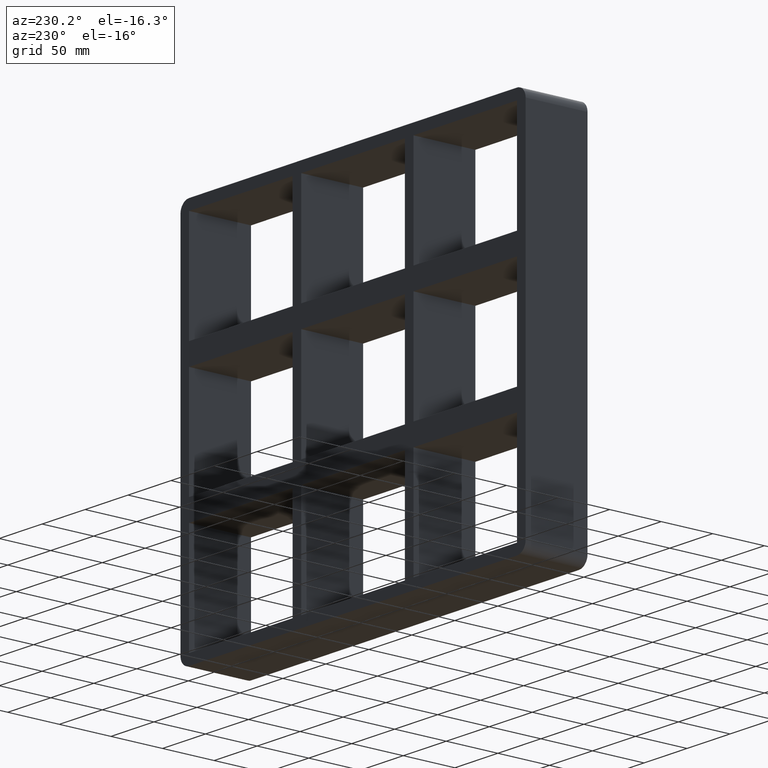
[diagram: clean part render]
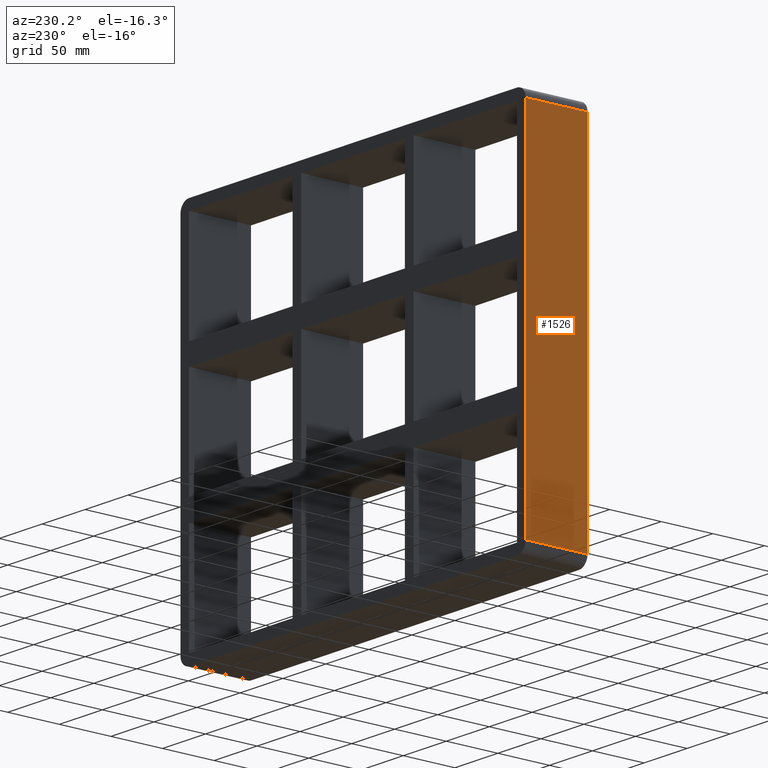
[diagram: same view with one face highlighted and labeled with its STEP entity id]
A machine part, auxiliary view. The second image highlights one B-rep face of the part: STEP entity #1526.
In plain terms, the highlighted planar face has unit normal (-1, 0, 0).
Its self-contained STEP definition (entity closure, byte-faithful):
#580=CARTESIAN_POINT('',(-200.75000000000006,57.0,-171.50000000000003));
#581=VERTEX_POINT('',#580);
#589=CARTESIAN_POINT('',(-200.75000000000006,57.0,171.50000000000003));
#590=VERTEX_POINT('',#589);
#591=CARTESIAN_POINT('',(-200.75000000000006,57.0,-171.50000000000003));
#592=DIRECTION('',(0.0,0.0,1.0));
#593=VECTOR('',#592,343.00000000000006);
#594=LINE('',#591,#593);
#595=EDGE_CURVE('',#581,#590,#594,.T.);
#1027=CARTESIAN_POINT('',(-200.75000000000006,-3.0,171.50000000000003));
#1028=VERTEX_POINT('',#1027);
#1036=CARTESIAN_POINT('',(-200.75000000000006,-3.0,-171.50000000000003));
#1037=VERTEX_POINT('',#1036);
#1038=CARTESIAN_POINT('',(-200.75000000000006,-3.0,171.50000000000003));
#1039=DIRECTION('',(0.0,0.0,-1.0));
#1040=VECTOR('',#1039,343.00000000000006);
#1041=LINE('',#1038,#1040);
#1042=EDGE_CURVE('',#1028,#1037,#1041,.T.);
#1501=CARTESIAN_POINT('',(-200.75000000000006,-3.0,-171.50000000000003));
#1502=DIRECTION('',(0.0,1.0,0.0));
#1503=VECTOR('',#1502,60.0);
#1504=LINE('',#1501,#1503);
#1505=EDGE_CURVE('',#1037,#581,#1504,.T.);
#1510=CARTESIAN_POINT('',(-200.75000000000006,0.0,-181.50000000000003));
#1511=DIRECTION('',(-1.0,0.0,0.0));
#1512=DIRECTION('',(0.0,0.0,1.0));
#1513=AXIS2_PLACEMENT_3D('',#1510,#1511,#1512);
#1514=PLANE('',#1513);
#1515=ORIENTED_EDGE('',*,*,#1505,.F.);
#1516=ORIENTED_EDGE('',*,*,#1042,.F.);
#1517=CARTESIAN_POINT('',(-200.75000000000006,57.0,171.50000000000003));
#1518=DIRECTION('',(0.0,-1.0,0.0));
#1519=VECTOR('',#1518,60.0);
#1520=LINE('',#1517,#1519);
#1521=EDGE_CURVE('',#590,#1028,#1520,.T.);
#1522=ORIENTED_EDGE('',*,*,#1521,.F.);
#1523=ORIENTED_EDGE('',*,*,#595,.F.);
#1524=EDGE_LOOP('',(#1515,#1516,#1522,#1523));
#1525=FACE_OUTER_BOUND('',#1524,.T.);
#1526=ADVANCED_FACE('',(#1525),#1514,.T.);